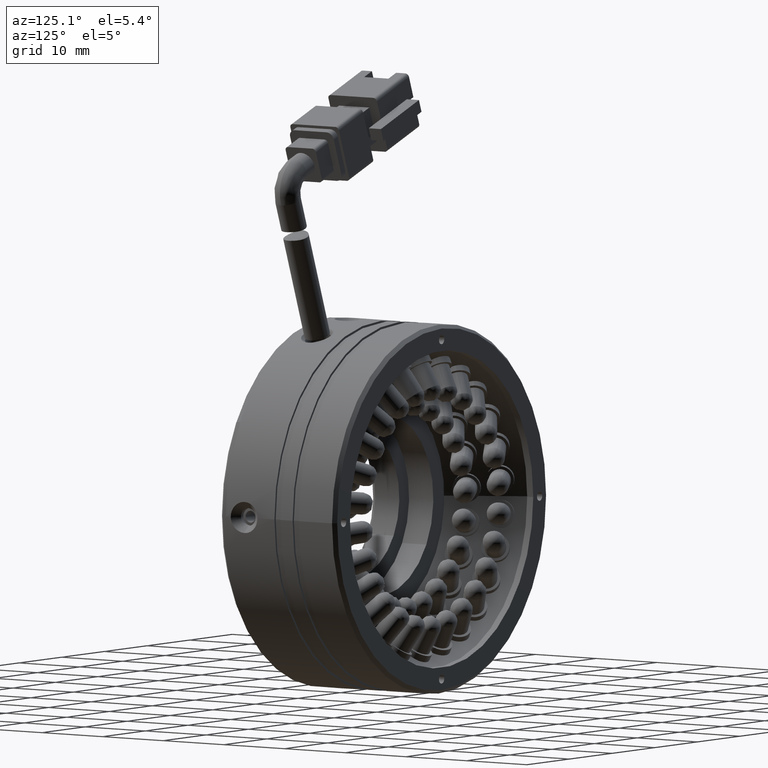
[diagram: clean part render]
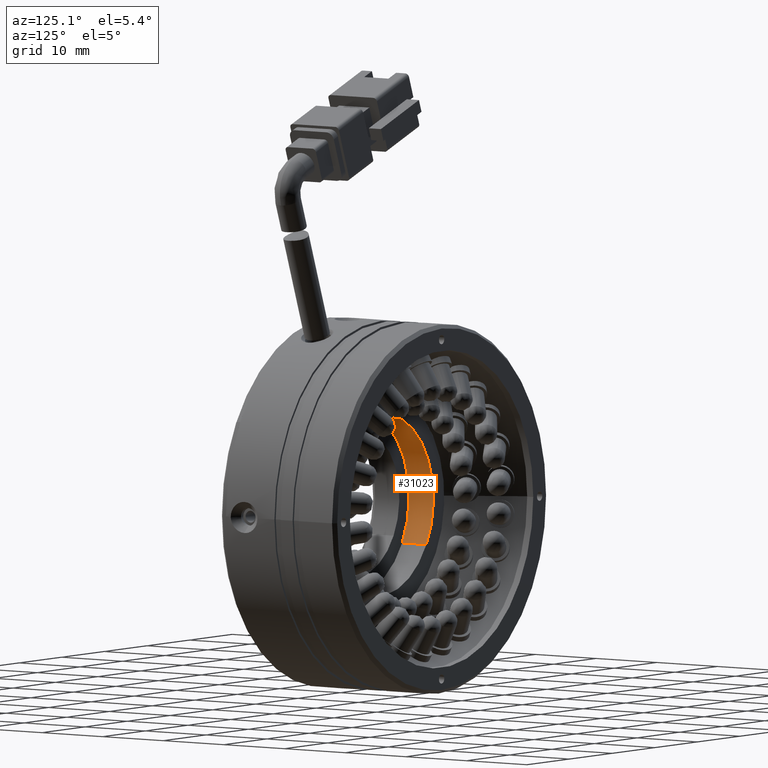
[diagram: same view with one face highlighted and labeled with its STEP entity id]
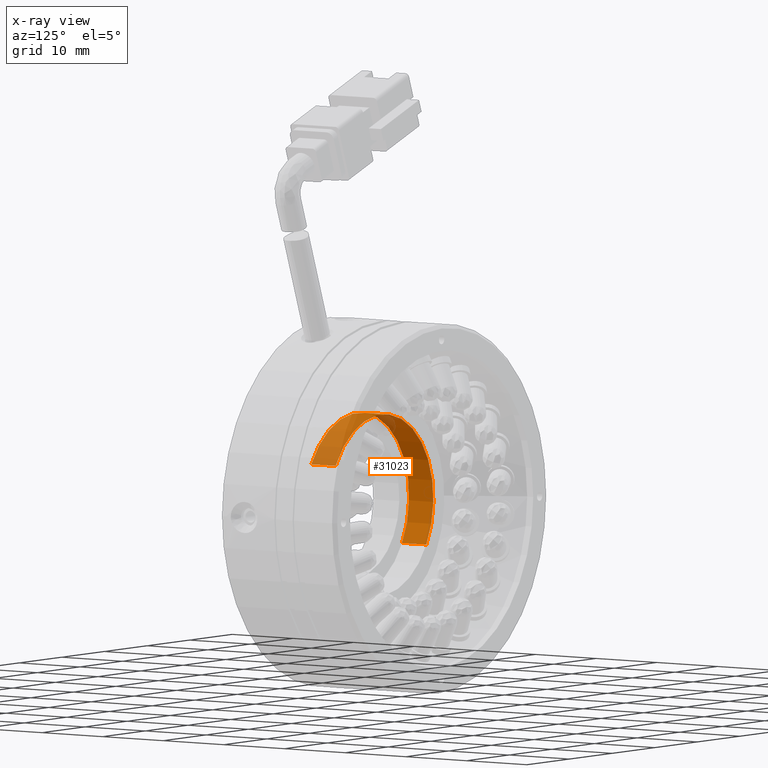
[diagram: x-ray of the same camera — body ghosted, the highlighted face saturated]
A machine part, auxiliary view. The second image highlights one B-rep face of the part: STEP entity #31023.
The next image is the same camera in x-ray: the body ghosted, the highlighted face saturated — about 35% of this face is hidden behind the body in this view.
In plain terms, the highlighted cylindrical surface (partial cylindrical patch) has radius 12.3 mm, axis along (-0, 1, -0).
Its self-contained STEP definition (entity closure, byte-faithful):
#93 = DIRECTION ( 'NONE',  ( -0.8660254037844380400, 0.0000000000000000000, -0.5000000000000008900 ) ) ;
#2445 = CIRCLE ( 'NONE', #7952, 12.30000000000001000 ) ;
#3917 = DIRECTION ( 'NONE',  ( -1.229783673277241900E-016, 1.000000000000000000, -6.123233995736763600E-017 ) ) ;
#5239 = DIRECTION ( 'NONE',  ( -1.229783673277241900E-016, 1.000000000000000000, -6.123233995736763600E-017 ) ) ;
#5815 = EDGE_CURVE ( 'NONE', #30141, #41046, #19495, .T. ) ;
#7410 = VERTEX_POINT ( 'NONE', #32364 ) ;
#7952 = AXIS2_PLACEMENT_3D ( 'NONE', #21980, #49336, #25975 ) ;
#8778 = AXIS2_PLACEMENT_3D ( 'NONE', #50898, #3917, #93 ) ;
#9104 = VECTOR ( 'NONE', #33009, 1000.000000000000000 ) ;
#12710 = CARTESIAN_POINT ( 'NONE',  ( -83.07423982193964200, 11.12753120665742100, 6.150000000000011900 ) ) ;
#12762 = CARTESIAN_POINT ( 'NONE',  ( -93.72635228848822900, 7.127531206657423900, -5.037329277016266400E-015 ) ) ;
#16682 = DIRECTION ( 'NONE',  ( -0.8660254037844380400, -1.410344289412037200E-016, -0.5000000000000008900 ) ) ;
#19495 = LINE ( 'NONE', #33525, #9104 ) ;
#21980 = CARTESIAN_POINT ( 'NONE',  ( -93.72635228848822900, 11.12753120665741900, -5.282258636845737500E-015 ) ) ;
#25379 = EDGE_CURVE ( 'NONE', #7410, #30141, #46489, .T. ) ;
#25975 = DIRECTION ( 'NONE',  ( -0.8660254037844380400, -1.410344289412037200E-016, -0.5000000000000008900 ) ) ;
#28555 = CARTESIAN_POINT ( 'NONE',  ( -104.3784647550368300, 11.12753120665741800, -6.150000000000021700 ) ) ;
#28753 = CARTESIAN_POINT ( 'NONE',  ( -83.07423982193964200, 24.01734612509121200, 6.150000000000011900 ) ) ;
#30141 = VERTEX_POINT ( 'NONE', #44488 ) ;
#31023 = ADVANCED_FACE ( 'NONE', ( #50558 ), #36670, .F. ) ;
#32364 = CARTESIAN_POINT ( 'NONE',  ( -83.07423982193964200, 7.127531206657425700, 6.150000000000011900 ) ) ;
#33009 = DIRECTION ( 'NONE',  ( -1.229783673277241900E-016, 1.000000000000000000, -6.123233995736763600E-017 ) ) ;
#33525 = CARTESIAN_POINT ( 'NONE',  ( -104.3784647550368300, 24.01734612509121200, -6.150000000000022600 ) ) ;
#33969 = LINE ( 'NONE', #28753, #44379 ) ;
#35163 = EDGE_LOOP ( 'NONE', ( #46144, #46851, #45096, #45484 ) ) ;
#36670 = CYLINDRICAL_SURFACE ( 'NONE', #8778, 12.30000000000001000 ) ;
#38547 = VERTEX_POINT ( 'NONE', #12710 ) ;
#40364 = DIRECTION ( 'NONE',  ( 1.229783673277241900E-016, -1.000000000000000000, 6.123233995736763600E-017 ) ) ;
#41046 = VERTEX_POINT ( 'NONE', #28555 ) ;
#44379 = VECTOR ( 'NONE', #5239, 1000.000000000000000 ) ;
#44488 = CARTESIAN_POINT ( 'NONE',  ( -104.3784647550368300, 7.127531206657422100, -6.150000000000021700 ) ) ;
#44515 = EDGE_CURVE ( 'NONE', #7410, #38547, #33969, .T. ) ;
#44516 = AXIS2_PLACEMENT_3D ( 'NONE', #12762, #40364, #16682 ) ;
#45096 = ORIENTED_EDGE ( 'NONE', *, *, #5815, .T. ) ;
#45484 = ORIENTED_EDGE ( 'NONE', *, *, #48988, .F. ) ;
#46144 = ORIENTED_EDGE ( 'NONE', *, *, #44515, .F. ) ;
#46489 = CIRCLE ( 'NONE', #44516, 12.30000000000001000 ) ;
#46851 = ORIENTED_EDGE ( 'NONE', *, *, #25379, .T. ) ;
#48988 = EDGE_CURVE ( 'NONE', #38547, #41046, #2445, .T. ) ;
#49336 = DIRECTION ( 'NONE',  ( 1.229783673277241900E-016, -1.000000000000000000, 6.123233995736763600E-017 ) ) ;
#50558 = FACE_OUTER_BOUND ( 'NONE', #35163, .T. ) ;
#50898 = CARTESIAN_POINT ( 'NONE',  ( -93.72635228848822900, 24.01734612509121200, -6.071532165918824000E-015 ) ) ;